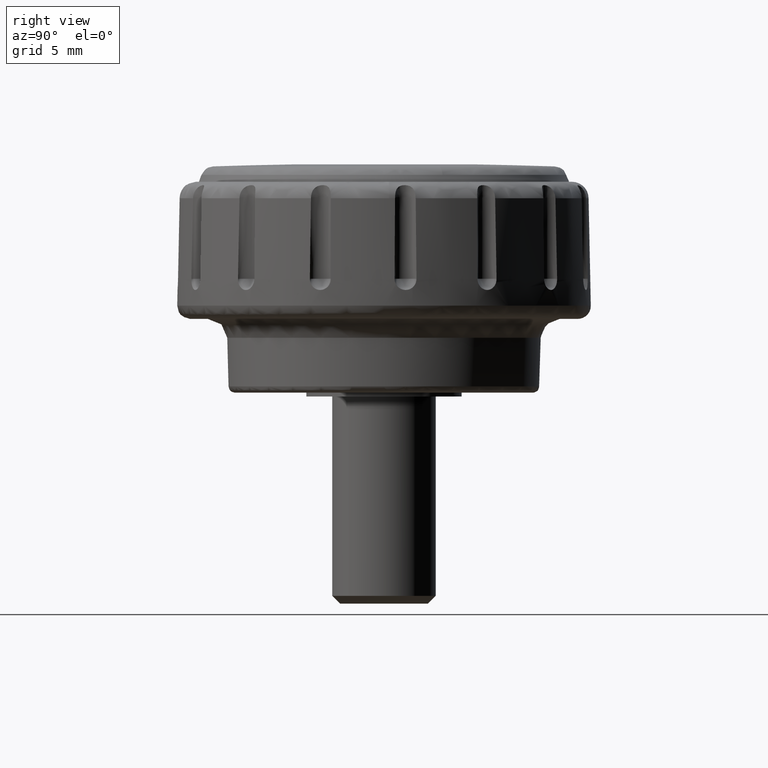
[diagram: clean part render]
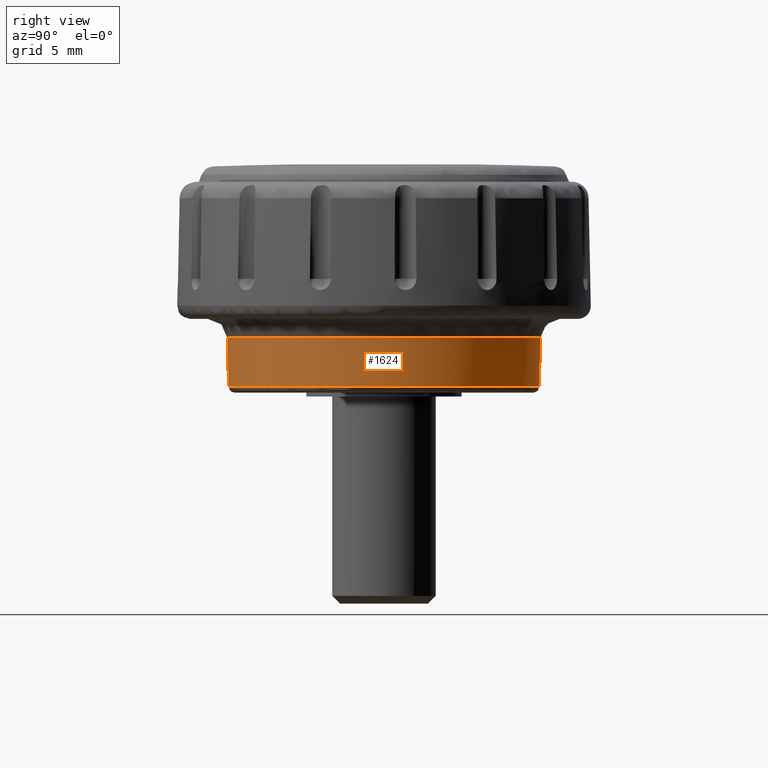
[diagram: same view with one face highlighted and labeled with its STEP entity id]
A machine part, right view. The second image highlights one B-rep face of the part: STEP entity #1624.
In plain terms, the highlighted face is a freeform B-spline surface patch.
Its self-contained STEP definition (entity closure, byte-faithful):
#1450=CARTESIAN_POINT('',(-7.755550495730030,-9.170526298647154,0.693094801422253));
#1451=CARTESIAN_POINT('',(0.904667560097945,-16.494507087613979,0.693094801422253));
#1452=CARTESIAN_POINT('',(8.711958070423805,-8.267339515537927,0.693094801422253));
#1453=CARTESIAN_POINT('',(16.979297585961735,0.444618554885878,0.693094801422253));
#1454=CARTESIAN_POINT('',(8.267339515537927,8.711958070423805,0.693094801422253));
#1455=CARTESIAN_POINT('',(-0.444618554885878,16.979297585961735,0.693094801422253));
#1456=CARTESIAN_POINT('',(-8.711958070423805,8.267339515537927,0.693094801422253));
#1457=CARTESIAN_POINT('',(-7.822212617265379,-9.249350714657354,4.635423280089086));
#1458=CARTESIAN_POINT('',(0.912443546969999,-16.636284107407164,4.635423280089086));
#1459=CARTESIAN_POINT('',(8.786840905371655,-8.338400672558594,4.635423280089086));
#1460=CARTESIAN_POINT('',(17.125241577930247,0.448440232813061,4.635423280089086));
#1461=CARTESIAN_POINT('',(8.338400672558594,8.786840905371655,4.635423280089086));
#1462=CARTESIAN_POINT('',(-0.448440232813061,17.125241577930247,4.635423280089086));
#1463=CARTESIAN_POINT('',(-8.786840905371655,8.338400672558594,4.635423280089086));
#1471=(BOUNDED_SURFACE()B_SPLINE_SURFACE(2,1,((#1450,#1457),(#1451,#1458),(#1452,#1459),(#1453,#1460),(#1454,#1461),(#1455,#1462),(#1456,#1463)),.UNSPECIFIED.,.F.,.F.,.U.)B_SPLINE_SURFACE_WITH_KNOTS((3,2,2,3),(2,2),(0.0,19.267532276370709,39.337878397590202,59.408224518809703),(0.0,3.943679875536869),.UNSPECIFIED.)GEOMETRIC_REPRESENTATION_ITEM()RATIONAL_B_SPLINE_SURFACE(((0.977505800795127,0.977505800795127),(0.718822509939086,0.718822509939086),(1.0,1.0),(0.707106781186548,0.707106781186548),(1.0,1.0),(0.707106781186548,0.707106781186548),(1.0,1.0)))REPRESENTATION_ITEM('')SURFACE());
#1472=CARTESIAN_POINT('',(-0.000000445722495,-12.012748564965610,0.786903926888545));
#1473=VERTEX_POINT('',#1472);
#1474=CARTESIAN_POINT('',(-7.757136795366043,-9.172402033305326,0.786903287123302));
#1475=VERTEX_POINT('',#1474);
#1476=CARTESIAN_POINT('',(-0.000000445722495,-12.012748564965610,0.786903926888545));
#1477=CARTESIAN_POINT('',(-0.505095753667739,-12.012765947121480,0.786903885231110));
#1478=CARTESIAN_POINT('',(-1.493320260986149,-11.950328361178000,0.786903803727875));
#1479=CARTESIAN_POINT('',(-3.006667979920839,-11.664835797679080,0.786903678915417));
#1480=CARTESIAN_POINT('',(-4.618055336955923,-11.139191918499529,0.786903546017197));
#1481=CARTESIAN_POINT('',(-6.251794863582134,-10.317129135713691,0.786903411275494));
#1482=CARTESIAN_POINT('',(-7.287650410550237,-9.569495754824041,0.786903325843912));
#1483=CARTESIAN_POINT('',(-7.757136795366043,-9.172402033305326,0.786903287123302));
#1484=B_SPLINE_CURVE_WITH_KNOTS('',3,(#1476,#1477,#1478,#1479,#1480,#1481,#1482,#1483),.UNSPECIFIED.,.F.,.U.,(4,1,1,1,1,4),(3.690840E-009,1.515285265171906,2.964690334487021,4.611734209432517,6.588200935744519,8.432896015834130),.UNSPECIFIED.);
#1485=EDGE_CURVE('',#1473,#1475,#1484,.T.);
#1486=ORIENTED_EDGE('',*,*,#1485,.F.);
#1487=CARTESIAN_POINT('',(12.012748564965619,0.0,0.786903926888545));
#1488=VERTEX_POINT('',#1487);
#1489=CARTESIAN_POINT('',(12.012748564965619,0.0,0.786903926888545));
#1490=CARTESIAN_POINT('',(12.012770421473050,-0.565103959728566,0.786903926888546));
#1491=CARTESIAN_POINT('',(11.927662573683570,-1.769022022647260,0.786903926888544));
#1492=CARTESIAN_POINT('',(11.592851664083510,-3.260064703281046,0.786903926888548));
#1493=CARTESIAN_POINT('',(11.132890204422070,-4.557980665625144,0.786903926888540));
#1494=CARTESIAN_POINT('',(10.627516079599239,-5.652498703941414,0.786903926888549));
#1495=CARTESIAN_POINT('',(9.978910982752364,-6.727123155075908,0.786903926888541));
#1496=CARTESIAN_POINT('',(9.148276663852368,-7.825842428306104,0.786903926888540));
#1497=CARTESIAN_POINT('',(8.316236229149746,-8.699758621147719,0.786903926888545));
#1498=CARTESIAN_POINT('',(7.249467186868094,-9.608604928716311,0.786903926888547));
#1499=CARTESIAN_POINT('',(6.109700929929455,-10.385453367746891,0.786903926888532));
#1500=CARTESIAN_POINT('',(4.633970683093959,-11.122605476902480,0.786903926888566));
#1501=CARTESIAN_POINT('',(3.071818374326291,-11.654679283352090,0.786903926888533));
#1502=CARTESIAN_POINT('',(1.498754397830137,-11.952535318607140,0.786903926888551));
#1503=CARTESIAN_POINT('',(0.466824859441252,-12.012756836533480,0.786903926888537));
#1504=CARTESIAN_POINT('',(-0.000000445722495,-12.012748564965610,0.786903926888545));
#1505=B_SPLINE_CURVE_WITH_KNOTS('',3,(#1489,#1490,#1491,#1492,#1493,#1494,#1495,#1496,#1497,#1498,#1499,#1500,#1501,#1502,#1503,#1504),.UNSPECIFIED.,.F.,.U.,(4,1,1,1,1,1,1,1,1,1,1,1,1,4),(0.000000013246957,1.695314778260283,3.611758428306722,4.569984085910825,5.823044325569214,7.223529895927142,8.329174158870174,9.950767509843589,10.835283509189789,12.530600829374430,14.078498844766420,15.773815935570511,17.469133255698122,18.869611172671569),.UNSPECIFIED.);
#1506=EDGE_CURVE('',#1488,#1473,#1505,.T.);
#1507=ORIENTED_EDGE('',*,*,#1506,.F.);
#1508=CARTESIAN_POINT('',(0.837688017793610,11.983505616873691,0.786903926435146));
#1509=VERTEX_POINT('',#1508);
#1510=CARTESIAN_POINT('',(0.837688017793610,11.983505616873691,0.786903926435146));
#1511=CARTESIAN_POINT('',(1.282686408550643,11.952404297705151,0.786903926453202));
#1512=CARTESIAN_POINT('',(2.262533918009756,11.828792672363379,0.786903926492955));
#1513=CARTESIAN_POINT('',(3.881914903972174,11.417718261505930,0.786903926558657));
#1514=CARTESIAN_POINT('',(5.595699276918973,10.691014908025119,0.786903926628191));
#1515=CARTESIAN_POINT('',(7.067426742586862,9.757477451925697,0.786903926687900));
#1516=CARTESIAN_POINT('',(8.184957332668752,8.821561449304115,0.786903926733244));
#1517=CARTESIAN_POINT('',(9.167874904477280,7.810018796960082,0.786903926773125));
#1518=CARTESIAN_POINT('',(10.020302963259430,6.683773542816586,0.786903926807703));
#1519=CARTESIAN_POINT('',(10.793791780672880,5.338575280066688,0.786903926839092));
#1520=CARTESIAN_POINT('',(11.308933716289239,4.125671330265097,0.786903926859974));
#1521=CARTESIAN_POINT('',(11.712459962364170,2.774589195236570,0.786903926876392));
#1522=CARTESIAN_POINT('',(11.954866470354130,1.455642560298529,0.786903926886122));
#1523=CARTESIAN_POINT('',(12.012759252120350,0.469562966806281,0.786903926888603));
#1524=CARTESIAN_POINT('',(12.012748564965619,0.0,0.786903926888545));
#1525=B_SPLINE_CURVE_WITH_KNOTS('',3,(#1510,#1511,#1512,#1513,#1514,#1515,#1516,#1517,#1518,#1519,#1520,#1521,#1522,#1523,#1524),.UNSPECIFIED.,.F.,.U.,(4,1,1,1,1,1,1,1,1,1,1,1,4),(0.000000014050045,1.338254693477875,2.958249550019444,5.000852681147890,6.902583787917214,8.170415987638997,9.367790432430725,11.128652021857830,12.396476356950339,14.016471020089490,15.072993412258221,16.622548380093399,18.031238733059642),.UNSPECIFIED.);
#1526=EDGE_CURVE('',#1509,#1488,#1525,.T.);
#1527=ORIENTED_EDGE('',*,*,#1526,.F.);
#1528=CARTESIAN_POINT('',(-8.713739933459330,8.269030422102563,0.786903393673571));
#1529=VERTEX_POINT('',#1528);
#1530=CARTESIAN_POINT('',(-8.713739933459330,8.269030422102563,0.786903393673571));
#1531=CARTESIAN_POINT('',(-8.410075475418523,8.589033393181312,0.786903409814602));
#1532=CARTESIAN_POINT('',(-7.646959858076797,9.309275178949520,0.786903450708617));
#1533=CARTESIAN_POINT('',(-6.481480672800744,10.151351678258630,0.786903514182458));
#1534=CARTESIAN_POINT('',(-5.247153965485301,10.828381486995680,0.786903582253509));
#1535=CARTESIAN_POINT('',(-4.129156536777914,11.303547375630410,0.786903644454020));
#1536=CARTESIAN_POINT('',(-2.757033497784654,11.725918175552341,0.786903721427586));
#1537=CARTESIAN_POINT('',(-1.094969121548083,12.013289412905610,0.786903815551319));
#1538=CARTESIAN_POINT('',(0.177571597818472,12.029693500738579,0.786903888419645));
#1539=CARTESIAN_POINT('',(0.837688017793610,11.983505616873691,0.786903926435146));
#1540=B_SPLINE_CURVE_WITH_KNOTS('',3,(#1530,#1531,#1532,#1533,#1534,#1535,#1536,#1537,#1538,#1539),.UNSPECIFIED.,.F.,.U.,(4,1,1,1,1,1,1,4),(2.877261E-009,1.323456052081886,3.143215509631629,4.301244378631832,5.541979453098574,6.782724231263493,8.602485508107591,10.587673020914110),.UNSPECIFIED.);
#1541=EDGE_CURVE('',#1529,#1509,#1540,.T.);
#1542=ORIENTED_EDGE('',*,*,#1541,.F.);
#1543=CARTESIAN_POINT('',(-8.785014474105974,8.336667465448844,4.539268140016897));
#1544=VERTEX_POINT('',#1543);
#1545=CARTESIAN_POINT('',(-8.713739933459330,8.269030422102563,0.786903393673571));
#1546=CARTESIAN_POINT('',(-8.785014474105974,8.336667465448844,4.539268140016897));
#1547=QUASI_UNIFORM_CURVE('',1,(#1545,#1546),.UNSPECIFIED.,.F.,.U.);
#1548=EDGE_CURVE('',#1529,#1544,#1547,.T.);
#1549=ORIENTED_EDGE('',*,*,#1548,.T.);
#1550=CARTESIAN_POINT('',(0.304350776022675,12.107182778987990,4.539268926942993));
#1551=VERTEX_POINT('',#1550);
#1552=CARTESIAN_POINT('',(-8.785014474105974,8.336667465448844,4.539268140016897));
#1553=CARTESIAN_POINT('',(-8.367237922583554,8.776950777320197,4.539268175597106));
#1554=CARTESIAN_POINT('',(-7.406498578700983,9.647863842549679,4.539268257731681));
#1555=CARTESIAN_POINT('',(-5.918606292839051,10.614744199322759,4.539268385776285));
#1556=CARTESIAN_POINT('',(-4.526499169805825,11.257248216036420,4.539268506156590));
#1557=CARTESIAN_POINT('',(-3.125969474686167,11.733658386742860,4.539268627640562));
#1558=CARTESIAN_POINT('',(-1.544645112089651,12.060209341670481,4.539268765273411));
#1559=CARTESIAN_POINT('',(-0.302406626041272,12.122468860577079,4.539268873822625));
#1560=CARTESIAN_POINT('',(0.304350776022675,12.107182778987990,4.539268926942993));
#1561=B_SPLINE_CURVE_WITH_KNOTS('',3,(#1552,#1553,#1554,#1555,#1556,#1557,#1558,#1559,#1560),.UNSPECIFIED.,.F.,.U.,(4,1,1,1,1,1,4),(3.655135E-009,1.820849336094407,3.879205993977578,5.304209598701933,6.412559407825555,8.312580046144975,10.133429378584969),.UNSPECIFIED.);
#1562=EDGE_CURVE('',#1544,#1551,#1561,.T.);
#1563=ORIENTED_EDGE('',*,*,#1562,.T.);
#1564=CARTESIAN_POINT('',(12.111007564965620,0.0,4.539268926888739));
#1565=VERTEX_POINT('',#1564);
#1566=CARTESIAN_POINT('',(0.304350776022675,12.107182778987990,4.539268926942993));
#1567=CARTESIAN_POINT('',(0.937887345119233,12.091294333857229,4.539268926940081));
#1568=CARTESIAN_POINT('',(1.959247466327889,11.985011398936710,4.539268926935395));
#1569=CARTESIAN_POINT('',(3.456000261662605,11.633897738236460,4.539268926928509));
#1570=CARTESIAN_POINT('',(4.652419537319334,11.207834754116810,4.539268926923037));
#1571=CARTESIAN_POINT('',(5.904250728475884,10.601895503529709,4.539268926917252));
#1572=CARTESIAN_POINT('',(7.104846016892311,9.850087792358934,4.539268926911682));
#1573=CARTESIAN_POINT('',(8.349027900781996,8.824715517557616,4.539268926906100));
#1574=CARTESIAN_POINT('',(9.376783457090436,7.711836724220641,4.539268926901349));
#1575=CARTESIAN_POINT('',(10.333454240454310,6.385638412227372,4.539268926896896));
#1576=CARTESIAN_POINT('',(10.980497822386130,5.178630709165914,4.539268926894093));
#1577=CARTESIAN_POINT('',(11.479897347747290,3.907329132816363,4.539268926891597));
#1578=CARTESIAN_POINT('',(11.797497570816329,2.830486728775589,4.539268926890191));
#1579=CARTESIAN_POINT('',(12.047764567392640,1.486829684828101,4.539268926889024));
#1580=CARTESIAN_POINT('',(12.111030277349540,0.536235042853822,4.539268926888730));
#1581=CARTESIAN_POINT('',(12.111007564965620,0.0,4.539268926888739));
#1582=B_SPLINE_CURVE_WITH_KNOTS('',3,(#1566,#1567,#1568,#1569,#1570,#1571,#1572,#1573,#1574,#1575,#1576,#1577,#1578,#1579,#1580,#1581),.UNSPECIFIED.,.F.,.U.,(4,1,1,1,1,1,1,1,1,1,1,1,1,4),(0.000000013119163,1.901201557356501,3.071177252473690,4.606769795206706,5.703623132676988,7.239216781408789,8.847926329527411,10.529748506862701,11.772848968510001,13.747184795082649,14.624665650851901,15.867766257631921,17.110867277605291,18.719571811047540),.UNSPECIFIED.);
#1583=EDGE_CURVE('',#1551,#1565,#1582,.T.);
#1584=ORIENTED_EDGE('',*,*,#1583,.T.);
#1585=CARTESIAN_POINT('',(-0.000000443836880,-12.111007564965609,4.539268926888739));
#1586=VERTEX_POINT('',#1585);
#1587=CARTESIAN_POINT('',(12.111007564965620,0.0,4.539268926888739));
#1588=CARTESIAN_POINT('',(12.111045732271140,-0.619267972608982,4.539268926888728));
#1589=CARTESIAN_POINT('',(12.023415148198939,-1.758707953929030,4.539268926888747));
#1590=CARTESIAN_POINT('',(11.626497057014410,-3.552161105031236,4.539268926888759));
#1591=CARTESIAN_POINT('',(11.035957616383740,-5.083118134695717,4.539268926888679));
#1592=CARTESIAN_POINT('',(10.278199065563699,-6.449791713178276,4.539268926888777));
#1593=CARTESIAN_POINT('',(9.406854027864961,-7.687088167450427,4.539268926888714));
#1594=CARTESIAN_POINT('',(8.290622864941945,-8.888693064767601,4.539268926888767));
#1595=CARTESIAN_POINT('',(6.953141990807237,-9.959108945349906,4.539268926888727));
#1596=CARTESIAN_POINT('',(5.486799354520799,-10.844152828772000,4.539268926888743));
#1597=CARTESIAN_POINT('',(3.883848135405254,-11.519678159443799,4.539268926888740));
#1598=CARTESIAN_POINT('',(2.006406875009824,-11.996056440446891,4.539268926888740));
#1599=CARTESIAN_POINT('',(0.718352118310913,-12.111077909453520,4.539268926888741));
#1600=CARTESIAN_POINT('',(-0.000000443836880,-12.111007564965609,4.539268926888739));
#1601=B_SPLINE_CURVE_WITH_KNOTS('',3,(#1587,#1588,#1589,#1590,#1591,#1592,#1593,#1594,#1595,#1596,#1597,#1598,#1599,#1600),.UNSPECIFIED.,.F.,.U.,(4,1,1,1,1,1,1,1,1,1,1,4),(0.000000011912093,1.857799479674146,3.418367030804056,5.499112667192028,6.762422373847306,8.100045908858814,10.032160620479450,11.667028650278450,13.227591203383771,15.159716238925350,16.868906330899598,19.023956290005678),.UNSPECIFIED.);
#1602=EDGE_CURVE('',#1565,#1586,#1601,.T.);
#1603=ORIENTED_EDGE('',*,*,#1602,.T.);
#1604=CARTESIAN_POINT('',(-7.820586779636942,-9.247428229942404,4.539268228078758));
#1605=VERTEX_POINT('',#1604);
#1606=CARTESIAN_POINT('',(-0.000000443836880,-12.111007564965609,4.539268926888739));
#1607=CARTESIAN_POINT('',(-0.863484168394516,-12.111137872702900,4.539268849731947));
#1608=CARTESIAN_POINT('',(-2.147560015585110,-11.973095602650840,4.539268734993216));
#1609=CARTESIAN_POINT('',(-3.687675624788470,-11.553406161082570,4.539268597375776));
#1610=CARTESIAN_POINT('',(-4.788146410689257,-11.143610947417089,4.539268499043073));
#1611=CARTESIAN_POINT('',(-6.185987119881375,-10.468910718743530,4.539268374138698));
#1612=CARTESIAN_POINT('',(-7.212059084925945,-9.762208139258455,4.539268282453879));
#1613=CARTESIAN_POINT('',(-7.820586779636942,-9.247428229942404,4.539268228078758));
#1614=B_SPLINE_CURVE_WITH_KNOTS('',3,(#1606,#1607,#1608,#1609,#1610,#1611,#1612,#1613),.UNSPECIFIED.,.F.,.U.,(4,1,1,1,1,4),(3.722114E-009,2.590416063107309,3.852417246296499,4.782301676835905,6.110720595486531,8.501873425465771),.UNSPECIFIED.);
#1615=EDGE_CURVE('',#1586,#1605,#1614,.T.);
#1616=ORIENTED_EDGE('',*,*,#1615,.T.);
#1617=CARTESIAN_POINT('',(-7.757136795366043,-9.172402033305326,0.786903287123302));
#1618=CARTESIAN_POINT('',(-7.820586779636942,-9.247428229942404,4.539268228078758));
#1619=QUASI_UNIFORM_CURVE('',1,(#1617,#1618),.UNSPECIFIED.,.F.,.U.);
#1620=EDGE_CURVE('',#1475,#1605,#1619,.T.);
#1621=ORIENTED_EDGE('',*,*,#1620,.F.);
#1622=EDGE_LOOP('',(#1486,#1507,#1527,#1542,#1549,#1563,#1584,#1603,#1616,#1621));
#1623=FACE_OUTER_BOUND('',#1622,.T.);
#1624=ADVANCED_FACE('',(#1623),#1471,.T.);